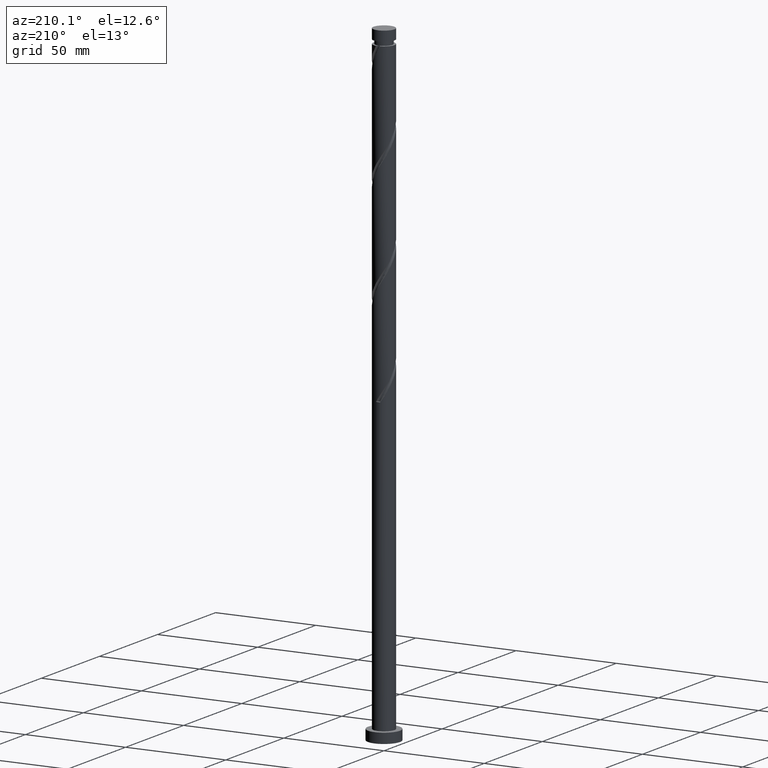
[diagram: clean part render]
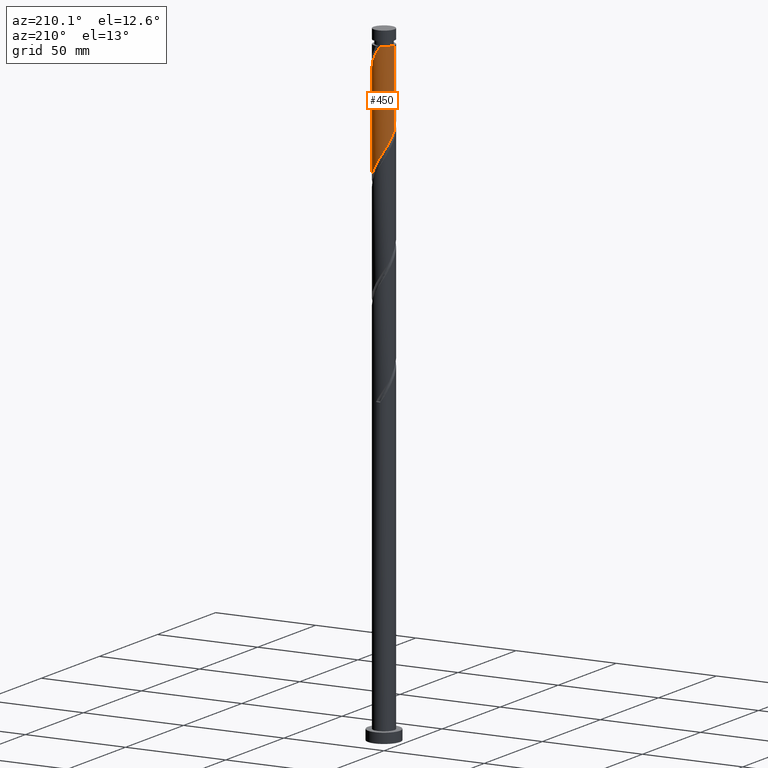
[diagram: same view with one face highlighted and labeled with its STEP entity id]
A machine part, auxiliary view. The second image highlights one B-rep face of the part: STEP entity #450.
In plain terms, the highlighted cylindrical surface (edge-blend (fillet) strip) has radius 5.25 mm, axis along (-0, -0, -1).
Its self-contained STEP definition (entity closure, byte-faithful):
#8 = CARTESIAN_POINT ( 'NONE',  ( 5.145000000000008455, 1.044736808961953756, 294.8838013169861938 ) ) ;
#14 = CARTESIAN_POINT ( 'NONE',  ( 4.024663158702826316, 3.371140231283796584, 249.8838013169861938 ) ) ;
#22 = CARTESIAN_POINT ( 'NONE',  ( 4.783528297706737042, 2.163413281146017386, 296.7588013169863075 ) ) ;
#26 = CARTESIAN_POINT ( 'NONE',  ( -3.824610861482512281, 3.644826878028541106, 263.9463013169861938 ) ) ;
#29 = EDGE_CURVE ( 'NONE', #1699, #625, #1405, .T. ) ;
#79 = FACE_OUTER_BOUND ( 'NONE', #88, .T. ) ;
#88 = EDGE_LOOP ( 'NONE', ( #571, #738, #360, #1154, #854 ) ) ;
#128 = CIRCLE ( 'NONE', #1399, 5.249999999999975131 ) ;
#134 = CARTESIAN_POINT ( 'NONE',  ( -0.7176887917048005994, 5.234246269600866697, 258.3213013169862506 ) ) ;
#166 = CARTESIAN_POINT ( 'NONE',  ( 1.624439084748026563, 5.027286432312394915, 254.5713013169862506 ) ) ;
#174 = CARTESIAN_POINT ( 'NONE',  ( 5.027286432312405573, 1.624439084748025897, 295.8213013169862506 ) ) ;
#175 = DIRECTION ( 'NONE',  ( -0.000000000000000000, -0.000000000000000000, -1.000000000000000000 ) ) ;
#178 = CARTESIAN_POINT ( 'NONE',  ( -5.144999999999996909, 1.044736808961953978, 268.6338013169861938 ) ) ;
#290 = DIRECTION ( 'NONE',  ( -0.000000000000000000, -0.000000000000000000, -1.000000000000000000 ) ) ;
#294 = VECTOR ( 'NONE', #827, 1000.000000000000000 ) ;
#316 = EDGE_CURVE ( 'NONE', #1848, #822, #797, .T. ) ;
#319 = CARTESIAN_POINT ( 'NONE',  ( 3.173607177786274214, 4.182190512291786177, 251.7588013169861938 ) ) ;
#360 = ORIENTED_EDGE ( 'NONE', *, *, #1233, .F. ) ;
#428 = CARTESIAN_POINT ( 'NONE',  ( -3.371140231283797029, 4.024663158702826316, 263.0088013169862506 ) ) ;
#437 = CARTESIAN_POINT ( 'NONE',  ( -1.044736808961989283, 5.145000000000001350, 308.0088013169862506 ) ) ;
#442 = CARTESIAN_POINT ( 'NONE',  ( -1.291056497733398478, 5.088779138424103898, 259.2588013169861938 ) ) ;
#450 = ADVANCED_FACE ( 'NONE', ( #79 ), #1253, .T. ) ;
#459 = CARTESIAN_POINT ( 'NONE',  ( 2.163413281146016942, 4.783528297706726384, 253.6338013169861654 ) ) ;
#494 = CARTESIAN_POINT ( 'NONE',  ( -5.249999999999975131, 0.000000000000000000, 308.0088013169862506 ) ) ;
#525 = DIRECTION ( 'NONE',  ( -0.000000000000000000, -0.000000000000000000, -1.000000000000000000 ) ) ;
#565 = CARTESIAN_POINT ( 'NONE',  ( 0.000000000000000000, 0.000000000000000000, 308.0088013169862506 ) ) ;
#571 = ORIENTED_EDGE ( 'NONE', *, *, #1569, .F. ) ;
#583 = CARTESIAN_POINT ( 'NONE',  ( -2.391046902423538789, 4.673905723312224758, 261.1338013169861938 ) ) ;
#590 = CARTESIAN_POINT ( 'NONE',  ( 3.824610861482520274, 3.644826878028545991, 299.5713013169863075 ) ) ;
#604 = CARTESIAN_POINT ( 'NONE',  ( 4.943312007247341100, 1.864424203761995358, 247.0713013169862222 ) ) ;
#609 = CARTESIAN_POINT ( 'NONE',  ( 1.291056497733402475, 5.088779138424111892, 304.2588013169863643 ) ) ;
#613 = CARTESIAN_POINT ( 'NONE',  ( 2.702387477544005989, 4.539770163101061407, 252.6963013169862791 ) ) ;
#621 = CARTESIAN_POINT ( 'NONE',  ( 2.391046902423545895, 4.673905723312233640, 302.3838013169861370 ) ) ;
#625 = VERTEX_POINT ( 'NONE', #1476 ) ;
#685 = CARTESIAN_POINT ( 'NONE',  ( 5.250000000000000000, 6.429395695523604153E-16, 315.0000000000000000 ) ) ;
#716 =( BOUNDED_CURVE ( )  B_SPLINE_CURVE ( 2, ( #1356, #1465, #178, #739, #1631, #1919, #1007, #26, #428, #878, #583, #894, #442, #134, #1017, #901, #1168, #166, #459, #613, #319, #1180, #14, #1026, #1482, #604, #1610, #1200, #1497, #1190, #728 ),
 .UNSPECIFIED., .F., .T. ) 
 B_SPLINE_CURVE_WITH_KNOTS ( ( 3, 2, 2, 2, 2, 2, 2, 2, 2, 2, 2, 2, 2, 2, 2, 3 ),
 ( 0.4295303401299223611, 0.4375000000000000000, 0.4464285714285714524, 0.4553571428571428492, 0.4642857142857143016, 0.4732142857142856984, 0.4821428571428571508, 0.4910714285714285476, 0.5000000000000000000, 0.5089285714285713969, 0.5178571428571429047, 0.5267857142857143016, 0.5357142857142856984, 0.5446428571428570953, 0.5535714285714286031, 0.5545303401299221946 ),
 .UNSPECIFIED. ) 
 CURVE ( )  GEOMETRIC_REPRESENTATION_ITEM ( )  RATIONAL_B_SPLINE_CURVE ( ( 0.9079949616361977505, 0.9039886423360614653, 0.9090909090909280454, 0.9033747362666029179, 0.9090909090909280454, 0.9033747362666029179, 0.9090909090909280454, 0.9033747362666029179, 0.9090909090909280454, 0.9033747362666029179, 0.9090909090909280454, 0.9033747362666029179, 0.9090909090909280454, 0.9033747362666029179, 0.9090909090909280454, 0.9033747362666029179, 0.9090909090909280454, 0.9033747362666029179, 0.9090909090909280454, 0.9033747362666029179, 0.9090909090909280454, 0.9033747362666029179, 0.9090909090909280454, 0.9033747362666029179, 0.9090909090909280454, 0.9033747362666029179, 0.9090909090909280454, 0.9033747362666029179, 0.9090909090909280454, 0.9084770030214697201, 0.9079949616361979725 ) ) 
 REPRESENTATION_ITEM ( '' )  );
#723 = EDGE_CURVE ( 'NONE', #1848, #1300, #128, .T. ) ;
#728 = CARTESIAN_POINT ( 'NONE',  ( 5.249999999999997335, -3.320984608539589435E-15, 244.0583183948922681 ) ) ;
#738 = ORIENTED_EDGE ( 'NONE', *, *, #29, .T. ) ;
#739 = CARTESIAN_POINT ( 'NONE',  ( -5.027286432312394915, 1.624439084748025230, 267.6963013169863075 ) ) ;
#755 = CARTESIAN_POINT ( 'NONE',  ( 0.1263271292644615185, 5.248479918644243902, 306.1338013169861938 ) ) ;
#797 = LINE ( 'NONE', #933, #1293 ) ;
#822 = VERTEX_POINT ( 'NONE', #1702 ) ;
#827 = DIRECTION ( 'NONE',  ( -0.000000000000000000, -0.000000000000000000, -1.000000000000000000 ) ) ;
#854 = ORIENTED_EDGE ( 'NONE', *, *, #723, .T. ) ;
#878 = CARTESIAN_POINT ( 'NONE',  ( -2.917669601085083553, 4.404499439377112857, 262.0713013169863075 ) ) ;
#891 = CARTESIAN_POINT ( 'NONE',  ( 5.250000000000007994, -8.955464112915676280E-17, 293.2092842390802048 ) ) ;
#894 = CARTESIAN_POINT ( 'NONE',  ( -1.864424203761996690, 4.943312007247341100, 260.1963013169863075 ) ) ;
#901 = CARTESIAN_POINT ( 'NONE',  ( 0.4650345331758827250, 5.262713567687604233, 256.4463013169862506 ) ) ;
#933 = CARTESIAN_POINT ( 'NONE',  ( -5.250000000000000000, 0.000000000000000000, 315.0000000000000000 ) ) ;
#1007 = CARTESIAN_POINT ( 'NONE',  ( -4.182190512291787066, 3.173607177786273326, 264.8838013169862506 ) ) ;
#1017 = CARTESIAN_POINT ( 'NONE',  ( -0.1263271292644588817, 5.248479918644234132, 257.3838013169862506 ) ) ;
#1026 = CARTESIAN_POINT ( 'NONE',  ( 4.404499439377113745, 2.917669601085082665, 248.9463013169863075 ) ) ;
#1154 = ORIENTED_EDGE ( 'NONE', *, *, #316, .F. ) ;
#1168 = CARTESIAN_POINT ( 'NONE',  ( 1.044736808961955088, 5.144999999999996909, 255.5088013169862222 ) ) ;
#1176 = CARTESIAN_POINT ( 'NONE',  ( 1.864424203762002241, 4.943312007247349094, 303.3213013169863075 ) ) ;
#1180 = CARTESIAN_POINT ( 'NONE',  ( 3.644826878028541550, 3.824610861482511392, 250.8213013169862222 ) ) ;
#1186 = CARTESIAN_POINT ( 'NONE',  ( 4.539770163101068512, 2.702387477544009542, 297.6963013169861938 ) ) ;
#1190 = CARTESIAN_POINT ( 'NONE',  ( 5.249999999999997335, 0.06317271012353928294, 244.1586810831173295 ) ) ;
#1200 = CARTESIAN_POINT ( 'NONE',  ( 5.234246269600866697, 0.7176887917047994891, 245.1963013169862791 ) ) ;
#1209 = CARTESIAN_POINT ( 'NONE',  ( -0.4650345331758888312, 5.262713567687613114, 307.0713013169864212 ) ) ;
#1233 = EDGE_CURVE ( 'NONE', #822, #625, #716, .T. ) ;
#1253 = CYLINDRICAL_SURFACE ( 'NONE', #1868, 5.250000000000000000 ) ;
#1293 = VECTOR ( 'NONE', #175, 1000.000000000000000 ) ;
#1295 = CARTESIAN_POINT ( 'NONE',  ( 5.250000000000007994, -8.955464112915676280E-17, 293.2092842390802048 ) ) ;
#1300 = VERTEX_POINT ( 'NONE', #1642 ) ;
#1321 = CARTESIAN_POINT ( 'NONE',  ( 3.371140231283805466, 4.024663158702830756, 300.5088013169862506 ) ) ;
#1331 = CARTESIAN_POINT ( 'NONE',  ( 4.182190512291795059, 3.173607177786278211, 298.6338013169860801 ) ) ;
#1356 = CARTESIAN_POINT ( 'NONE',  ( -5.249999999999997335, 2.067219632731384895E-15, 270.3083183948922397 ) ) ;
#1399 = AXIS2_PLACEMENT_3D ( 'NONE', #565, #290, #1914 ) ;
#1405 = LINE ( 'NONE', #685, #294 ) ;
#1447 =( BOUNDED_CURVE ( )  B_SPLINE_CURVE ( 2, ( #891, #1478, #8, #174, #22, #1186, #1331, #590, #1321, #1807, #621, #1176, #609, #1781, #755, #1209, #437 ),
 .UNSPECIFIED., .F., .T. ) 
 B_SPLINE_CURVE_WITH_KNOTS ( ( 3, 2, 2, 2, 2, 2, 2, 2, 3 ),
 ( 0.6795303401299219725, 0.6875000000000000000, 0.6964285714285713969, 0.7053571428571427937, 0.7142857142857144126, 0.7232142857142858094, 0.7321428571428573173, 0.7410714285714287142, 0.7500000000000001110 ),
 .UNSPECIFIED. ) 
 CURVE ( )  GEOMETRIC_REPRESENTATION_ITEM ( )  RATIONAL_B_SPLINE_CURVE ( ( 0.9079949616362054110, 0.9039886423360683487, 0.9090909090909352619, 0.9033747362666101344, 0.9090909090909352619, 0.9033747362666101344, 0.9090909090909352619, 0.9033747362666101344, 0.9090909090909352619, 0.9033747362666101344, 0.9090909090909352619, 0.9033747362666101344, 0.9090909090909352619, 0.9033747362666101344, 0.9090909090909352619, 0.9033747362666100233, 0.9090909090909353729 ) ) 
 REPRESENTATION_ITEM ( '' )  );
#1465 = CARTESIAN_POINT ( 'NONE',  ( -5.249999999999994671, 0.5276448530111106372, 269.4700473159285821 ) ) ;
#1476 = CARTESIAN_POINT ( 'NONE',  ( 5.249999999999997335, -3.320984608539589435E-15, 244.0583183948922681 ) ) ;
#1478 = CARTESIAN_POINT ( 'NONE',  ( 5.250000000000009770, 0.5276448530110808832, 294.0475553180435782 ) ) ;
#1482 = CARTESIAN_POINT ( 'NONE',  ( 4.673905723312225646, 2.391046902423538345, 248.0088013169862222 ) ) ;
#1497 = CARTESIAN_POINT ( 'NONE',  ( 5.248479918644231468, 0.1263271292644580490, 244.2588013169862222 ) ) ;
#1569 = EDGE_CURVE ( 'NONE', #1699, #1300, #1447, .T. ) ;
#1570 = DIRECTION ( 'NONE',  ( -1.000000000000000000, 0.000000000000000000, 0.000000000000000000 ) ) ;
#1610 = CARTESIAN_POINT ( 'NONE',  ( 5.088779138424103898, 1.291056497733397368, 246.1338013169861654 ) ) ;
#1631 = CARTESIAN_POINT ( 'NONE',  ( -4.783528297706726384, 2.163413281146015610, 266.7588013169861938 ) ) ;
#1642 = CARTESIAN_POINT ( 'NONE',  ( -1.044736808961989283, 5.145000000000001350, 308.0088013169862506 ) ) ;
#1699 = VERTEX_POINT ( 'NONE', #1295 ) ;
#1702 = CARTESIAN_POINT ( 'NONE',  ( -5.249999999999997335, 2.067219632731384895E-15, 270.3083183948922397 ) ) ;
#1725 = CARTESIAN_POINT ( 'NONE',  ( 0.000000000000000000, 0.000000000000000000, 315.0000000000000000 ) ) ;
#1781 = CARTESIAN_POINT ( 'NONE',  ( 0.7176887917048040411, 5.234246269600876467, 305.1963013169861938 ) ) ;
#1807 = CARTESIAN_POINT ( 'NONE',  ( 2.917669601085090214, 4.404499439377119963, 301.4463013169861938 ) ) ;
#1848 = VERTEX_POINT ( 'NONE', #494 ) ;
#1868 = AXIS2_PLACEMENT_3D ( 'NONE', #1725, #525, #1570 ) ;
#1914 = DIRECTION ( 'NONE',  ( -1.000000000000000000, 0.000000000000000000, 0.000000000000000000 ) ) ;
#1919 = CARTESIAN_POINT ( 'NONE',  ( -4.539770163101061407, 2.702387477544005545, 265.8213013169863643 ) ) ;